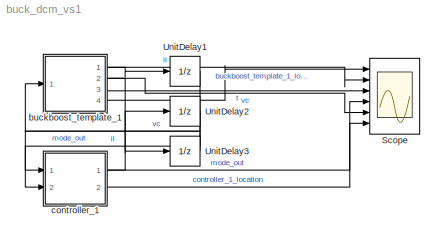
MODEL buck_dcm_vs1
KIND model
BLOCK [Scope] Scope
  Floating = off
  NumInputPorts = 6
  Ports = [6]
  SID = 3
  ScopeSpecificationString = Simulink.scopes.TimeScopeBlockCfg('CurrentConfiguration', extmgr.ConfigurationSet(extmgr.Configuration('Core','General UI',true),extmgr.Configuration('Core','Source UI',true),extmgr.Configuration('Sources','WiredSimulink',true,'DataLogging',true,'DataLoggingSaveFormat','Structure'),extmgr.Configuration('Visuals','Time Domain',true),extmgr.Configuration('Tools','Plot Navigation',true),extmgr.Config...<+56ch>
BLOCK [UnitDelay] UnitDelay1
  SID = 4
  SampleTime = 1/500000
BLOCK [UnitDelay] UnitDelay2
  SID = 5
  SampleTime = 1/500000
BLOCK [UnitDelay] UnitDelay3
  SID = 6
  SampleTime = 1/500000
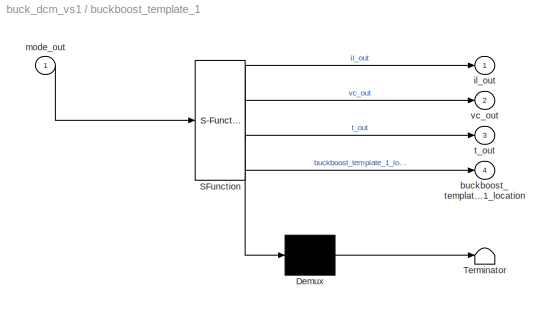
BLOCK [SubSystem] buckboost_template_1
  ErrorFcn = Stateflow.Translate.translate
  PermitHierarchicalResolution = ExplicitOnly
  Ports = [1, 4]
  RequestExecContextInheritance = off
  SFBlockType = Chart
  SID = 1
  TreatAsAtomicUnit = on
BLOCK [Demux] buckboost_template_1/ Demux 
  Outputs = 1
  Ports = [1, 1]
  SID = 1::90
BLOCK [S-Function] buckboost_template_1/ SFunction 
  EnableBusSupport = off
  FunctionName = sf_sfun
  PortCounts = [1 5]
  Ports = [1, 5]
  SFcnIsStateOwnerBlock = off
  SFunctionDeploymentMode = off
  SID = 1::89
  Tag = Stateflow S-Function buck_dcm_vs1 3
BLOCK [Terminator] buckboost_template_1/ Terminator 
  SID = 1::91
BLOCK [Outport] buckboost_template_1/buckboost_template_1_location
  IconDisplay = Port number
  Port = 4
  SID = 1::97
BLOCK [Outport] buckboost_template_1/il_out
  IconDisplay = Port number
  SID = 1::93
BLOCK [Inport] buckboost_template_1/mode_out
  IconDisplay = Port number
  SID = 1::96
BLOCK [Outport] buckboost_template_1/t_out
  IconDisplay = Port number
  Port = 3
  SID = 1::95
BLOCK [Outport] buckboost_template_1/vc_out
  IconDisplay = Port number
  Port = 2
  SID = 1::94
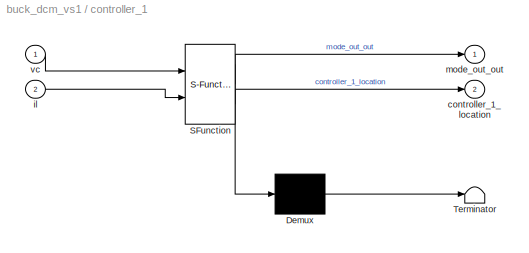
BLOCK [SubSystem] controller_1
  ErrorFcn = Stateflow.Translate.translate
  PermitHierarchicalResolution = ExplicitOnly
  Ports = [2, 2]
  RequestExecContextInheritance = off
  SFBlockType = Chart
  SID = 2
  TreatAsAtomicUnit = on
BLOCK [Demux] controller_1/ Demux 
  Outputs = 1
  Ports = [1, 1]
  SID = 2::90
BLOCK [S-Function] controller_1/ SFunction 
  EnableBusSupport = off
  FunctionName = sf_sfun
  PortCounts = [2 3]
  Ports = [2, 3]
  SFcnIsStateOwnerBlock = off
  SFunctionDeploymentMode = off
  SID = 2::89
  Tag = Stateflow S-Function buck_dcm_vs1 1
BLOCK [Terminator] controller_1/ Terminator 
  SID = 2::91
BLOCK [Outport] controller_1/controller_1_location
  IconDisplay = Port number
  Port = 2
  SID = 2::96
BLOCK [Inport] controller_1/il
  IconDisplay = Port number
  Port = 2
  SID = 2::95
BLOCK [Outport] controller_1/mode_out_out
  IconDisplay = Port number
  SID = 2::94
BLOCK [Inport] controller_1/vc
  IconDisplay = Port number
  SID = 2::93
LINE UnitDelay1:1 -> controller_1:2
LINE UnitDelay2:1 -> buckboost_template_1:1
LINE UnitDelay3:1 -> controller_1:1
LINE buckboost_template_1/ Demux :1 -> buckboost_template_1/ Terminator :1
LINE buckboost_template_1/ SFunction :1 -> buckboost_template_1/ Demux :1
LINE buckboost_template_1/ SFunction :2 -> buckboost_template_1/il_out:1
LINE buckboost_template_1/ SFunction :3 -> buckboost_template_1/vc_out:1
LINE buckboost_template_1/ SFunction :4 -> buckboost_template_1/t_out:1
LINE buckboost_template_1/ SFunction :5 -> buckboost_template_1/buckboost_template_1_location:1
LINE buckboost_template_1/mode_out:1 -> buckboost_template_1/ SFunction :1
NET buckboost_template_1:1 -> Scope:2, UnitDelay1:1
NET buckboost_template_1:2 -> Scope:5, UnitDelay3:1
LINE buckboost_template_1:3 -> Scope:3
LINE buckboost_template_1:4 -> Scope:1
LINE controller_1/ Demux :1 -> controller_1/ Terminator :1
LINE controller_1/ SFunction :1 -> controller_1/ Demux :1
LINE controller_1/ SFunction :2 -> controller_1/mode_out_out:1
LINE controller_1/ SFunction :3 -> controller_1/controller_1_location:1
LINE controller_1/il:1 -> controller_1/ SFunction :2
LINE controller_1/vc:1 -> controller_1/ SFunction :1
NET controller_1:1 -> Scope:4, UnitDelay2:1
LINE controller_1:2 -> Scope:6
note: NET lines group one-source signal fan-out (src -> all destinations, sorted); 1:1 wires keep LINE
CHART controller_1 states=2 transitions=5
  STATE_LABEL 'controller_11\\nentry:\\nmode_out_out=mode_out;\\ncontroller_1_location  =1;'
  STATE_LABEL 'controller_12\\nentry:\\nmode_out_out=mode_out;\\ncontroller_1_location  =2;'
CHART buckboost_template_1 states=3 transitions=5
  STATE_LABEL 'charging\\ndu:\\nil_dot = a00c * il + a01c * vc + b0c * Vs;\\nvc_dot = a10c * il + a11c * vc + b1c * Vs;\\nt_dot = 1.0;\\nil_out=il;\\nvc_out=vc;\\nt_out=t;\\nbuckboost_template_1_location =1;'
  STATE_LABEL 'discharging\\ndu:\\nil_dot = a00o * il + a01o * vc + b0o * Vs;\\nvc_dot = a10o * il + a11o * vc + b1o * Vs;\\nt_dot = 1.0;\\nil_out=il;\\nvc_out=vc;\\nt_out=t;\\nbuckboost_template_1_location =2;'
  STATE_LABEL 'dcm\\ndu:\\nil_dot = 0.0;\\nvc_dot = a11o * vc + b1o * Vs;\\nt_dot = 1.0;\\nil_out=il;\\nvc_out=vc;\\nt_out=t;\\nbuckboost_template_1_location =3;'
